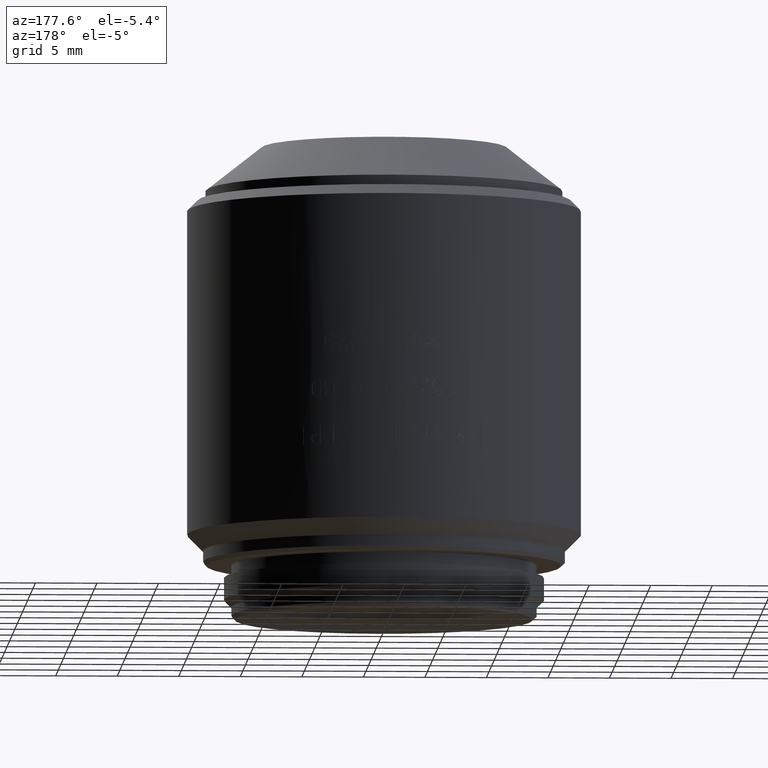
[diagram: clean part render]
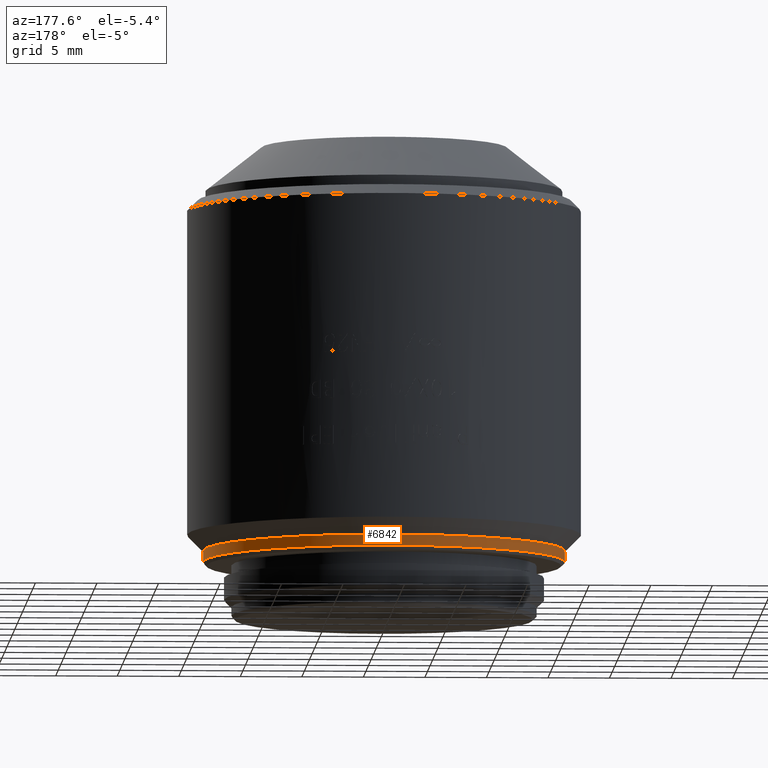
[diagram: same view with one face highlighted and labeled with its STEP entity id]
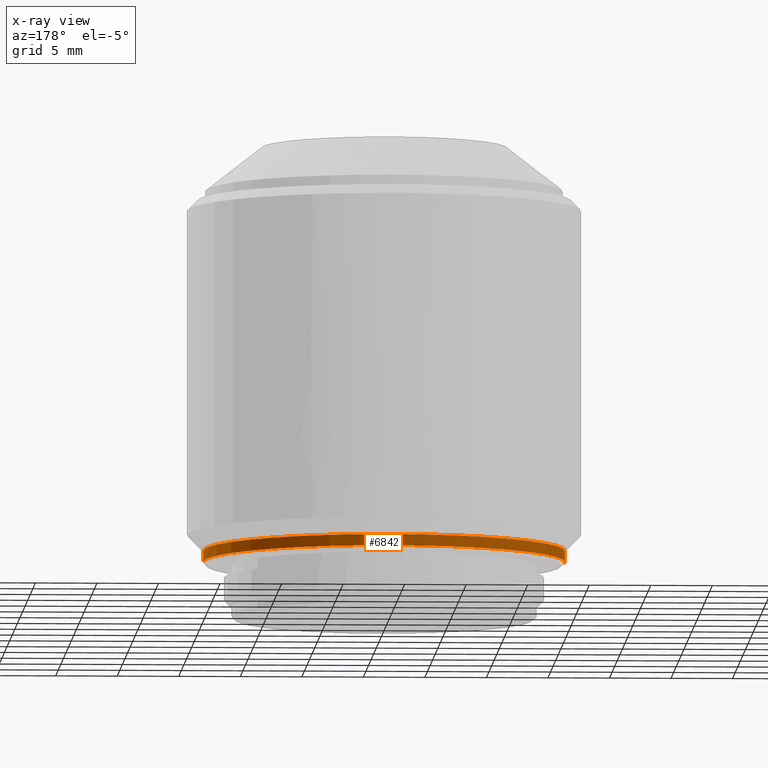
[diagram: x-ray of the same camera — body ghosted, the highlighted face saturated]
A machine part, auxiliary view. The second image highlights one B-rep face of the part: STEP entity #6842.
The next image is the same camera in x-ray: the body ghosted, the highlighted face saturated — about 0% of this face is hidden behind the body in this view.
In plain terms, the highlighted cylindrical surface (partial cylindrical patch) has radius 14.7 mm, axis along (0, 0, -1).
Its self-contained STEP definition (entity closure, byte-faithful):
#28 = CARTESIAN_POINT ( 'NONE',  ( 14.69999999999998863, 0.000000000000000000, 4.700000000000000178 ) ) ;
#2128 = VECTOR ( 'NONE', #22856, 1000.000000000000000 ) ;
#2241 = VECTOR ( 'NONE', #5606, 1000.000000000000000 ) ;
#2744 = AXIS2_PLACEMENT_3D ( 'NONE', #21111, #20988, #19474 ) ;
#3737 = AXIS2_PLACEMENT_3D ( 'NONE', #22013, #14356, #4811 ) ;
#4327 = CIRCLE ( 'NONE', #2744, 14.69999999999999929 ) ;
#4811 = DIRECTION ( 'NONE',  ( -1.000000000000000000, 0.000000000000000000, 0.000000000000000000 ) ) ;
#5415 = ORIENTED_EDGE ( 'NONE', *, *, #12868, .T. ) ;
#5606 = DIRECTION ( 'NONE',  ( 0.000000000000000000, 0.000000000000000000, -1.000000000000000000 ) ) ;
#6546 = DIRECTION ( 'NONE',  ( 0.000000000000000000, 0.000000000000000000, 1.000000000000000000 ) ) ;
#6698 = CYLINDRICAL_SURFACE ( 'NONE', #3737, 14.69999999999999929 ) ;
#6842 = ADVANCED_FACE ( 'NONE', ( #8576 ), #6698, .T. ) ;
#7477 = CARTESIAN_POINT ( 'NONE',  ( 14.69999999999999929, 1.800230794746609123E-15, 5.599999999999999645 ) ) ;
#7512 = ORIENTED_EDGE ( 'NONE', *, *, #19279, .T. ) ;
#7605 = LINE ( 'NONE', #7477, #2241 ) ;
#7624 = EDGE_CURVE ( 'NONE', #11989, #14706, #11297, .T. ) ;
#8576 = FACE_OUTER_BOUND ( 'NONE', #14608, .T. ) ;
#9208 = ORIENTED_EDGE ( 'NONE', *, *, #7624, .F. ) ;
#9231 = ORIENTED_EDGE ( 'NONE', *, *, #23597, .T. ) ;
#9773 = CARTESIAN_POINT ( 'NONE',  ( 14.69999999999999929, 0.000000000000000000, 5.599999999999999645 ) ) ;
#10761 = CIRCLE ( 'NONE', #12776, 14.69999999999999929 ) ;
#11297 = LINE ( 'NONE', #18965, #2128 ) ;
#11989 = VERTEX_POINT ( 'NONE', #19103 ) ;
#12047 = VERTEX_POINT ( 'NONE', #28 ) ;
#12060 = CARTESIAN_POINT ( 'NONE',  ( 0.000000000000000000, 0.000000000000000000, 4.700000000000000178 ) ) ;
#12776 = AXIS2_PLACEMENT_3D ( 'NONE', #12060, #6546, #23615 ) ;
#12868 = EDGE_CURVE ( 'NONE', #11989, #14314, #4327, .T. ) ;
#14314 = VERTEX_POINT ( 'NONE', #9773 ) ;
#14356 = DIRECTION ( 'NONE',  ( 0.000000000000000000, 0.000000000000000000, -1.000000000000000000 ) ) ;
#14608 = EDGE_LOOP ( 'NONE', ( #5415, #9231, #7512, #9208 ) ) ;
#14706 = VERTEX_POINT ( 'NONE', #14735 ) ;
#14735 = CARTESIAN_POINT ( 'NONE',  ( -14.69999999999998863, 1.800230794746607940E-15, 4.700000000000000178 ) ) ;
#18965 = CARTESIAN_POINT ( 'NONE',  ( -14.69999999999999929, 0.000000000000000000, 5.599999999999999645 ) ) ;
#19103 = CARTESIAN_POINT ( 'NONE',  ( -14.69999999999999929, 1.879832836691186733E-15, 5.599999999999999645 ) ) ;
#19279 = EDGE_CURVE ( 'NONE', #12047, #14706, #10761, .T. ) ;
#19474 = DIRECTION ( 'NONE',  ( -1.000000000000000000, 0.000000000000000000, 0.000000000000000000 ) ) ;
#20988 = DIRECTION ( 'NONE',  ( 0.000000000000000000, 0.000000000000000000, -1.000000000000000000 ) ) ;
#21111 = CARTESIAN_POINT ( 'NONE',  ( 0.000000000000000000, 0.000000000000000000, 5.599999999999999645 ) ) ;
#22013 = CARTESIAN_POINT ( 'NONE',  ( 0.000000000000000000, 0.000000000000000000, 5.599999999999999645 ) ) ;
#22856 = DIRECTION ( 'NONE',  ( 0.000000000000000000, 0.000000000000000000, -1.000000000000000000 ) ) ;
#23597 = EDGE_CURVE ( 'NONE', #14314, #12047, #7605, .T. ) ;
#23615 = DIRECTION ( 'NONE',  ( -1.000000000000000000, 0.000000000000000000, 0.000000000000000000 ) ) ;